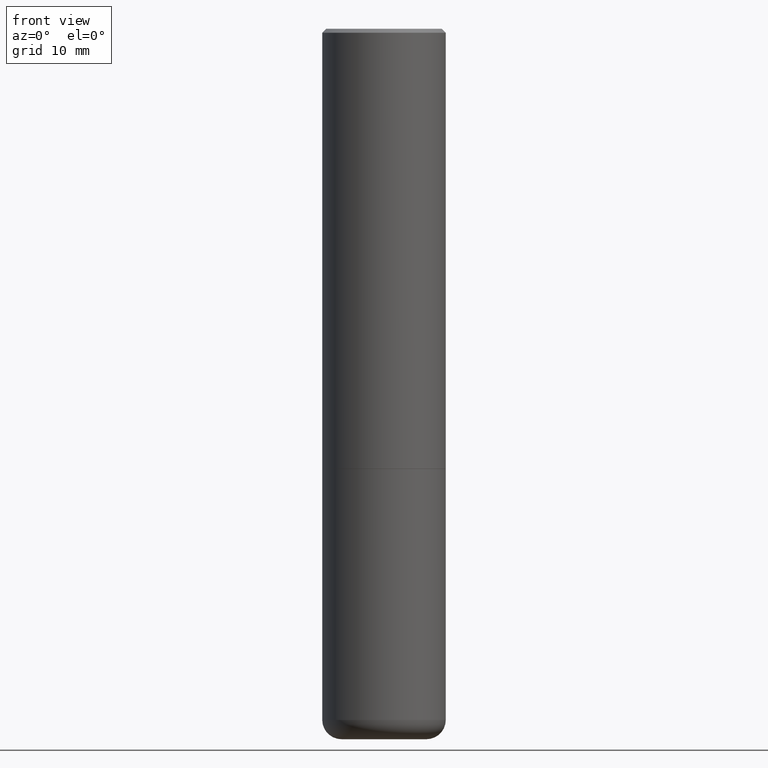
[diagram: clean part render]
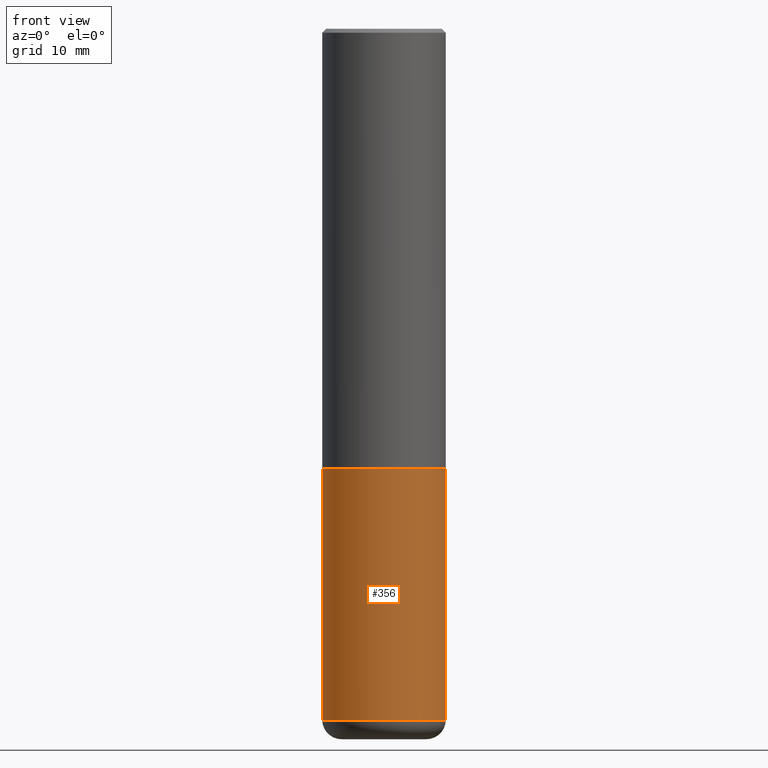
[diagram: same view with one face highlighted and labeled with its STEP entity id]
A machine part, front view. The second image highlights one B-rep face of the part: STEP entity #356.
In plain terms, the highlighted cylindrical surface (partial cylindrical patch) has radius 7.9997 mm, axis along (-0, 0, 1).
Its self-contained STEP definition (entity closure, byte-faithful):
#6 = VERTEX_POINT ( 'NONE', #367 ) ;
#9 = LINE ( 'NONE', #139, #37 ) ;
#37 = VECTOR ( 'NONE', #176, 39.37007874015748143 ) ;
#64 = CARTESIAN_POINT ( 'NONE',  ( 0.000000000000000000, 0.000000000000000000, 0.000000000000000000 ) ) ;
#71 = DIRECTION ( 'NONE',  ( 1.000000000000000000, -6.982962677686266711E-15, 0.000000000000000000 ) ) ;
#76 = ORIENTED_EDGE ( 'NONE', *, *, #197, .T. ) ;
#77 = LINE ( 'NONE', #385, #389 ) ;
#85 = EDGE_CURVE ( 'NONE', #6, #230, #9, .T. ) ;
#106 = VERTEX_POINT ( 'NONE', #394 ) ;
#112 = DIRECTION ( 'NONE',  ( -2.445468806185136597E-29, 3.491481338843145583E-15, 1.000000000000000000 ) ) ;
#114 = AXIS2_PLACEMENT_3D ( 'NONE', #171, #242, #71 ) ;
#116 = EDGE_CURVE ( 'NONE', #106, #230, #213, .T. ) ;
#125 = FACE_OUTER_BOUND ( 'NONE', #243, .T. ) ;
#126 = ORIENTED_EDGE ( 'NONE', *, *, #85, .T. ) ;
#139 = CARTESIAN_POINT ( 'NONE',  ( 0.3149500000000000077, -2.199284095337289871E-15, 1.535751875536930130E-29 ) ) ;
#148 = CARTESIAN_POINT ( 'NONE',  ( 0.3149500000000000077, -1.003416821970130712E-14, -2.243999999999999773 ) ) ;
#170 = ORIENTED_EDGE ( 'NONE', *, *, #411, .F. ) ;
#171 = CARTESIAN_POINT ( 'NONE',  ( 5.487632001079445967E-29, -7.834884124364017250E-15, -2.243999999999999773 ) ) ;
#176 = DIRECTION ( 'NONE',  ( -2.445468806185136877E-29, 3.491481338843145188E-15, 1.000000000000000000 ) ) ;
#183 = CARTESIAN_POINT ( 'NONE',  ( 8.616853885473946211E-29, -1.230258364554770589E-14, -3.523599999999999621 ) ) ;
#186 = CARTESIAN_POINT ( 'NONE',  ( -0.3149499999999999522, -1.006472929927126990E-14, -3.523599999999999621 ) ) ;
#197 = EDGE_CURVE ( 'NONE', #393, #6, #239, .T. ) ;
#213 = CIRCLE ( 'NONE', #114, 0.3149500000000000077 ) ;
#215 = AXIS2_PLACEMENT_3D ( 'NONE', #183, #112, #247 ) ;
#230 = VERTEX_POINT ( 'NONE', #148 ) ;
#234 = ORIENTED_EDGE ( 'NONE', *, *, #116, .F. ) ;
#239 = CIRCLE ( 'NONE', #215, 0.3149500000000000077 ) ;
#242 = DIRECTION ( 'NONE',  ( -2.445468806185136597E-29, 3.491481338843145583E-15, 1.000000000000000000 ) ) ;
#243 = EDGE_LOOP ( 'NONE', ( #170, #76, #126, #234 ) ) ;
#247 = DIRECTION ( 'NONE',  ( 1.000000000000000000, -6.982962677686269866E-15, 0.000000000000000000 ) ) ;
#252 = DIRECTION ( 'NONE',  ( -2.445468806185136597E-29, 3.491481338843145583E-15, 1.000000000000000000 ) ) ;
#356 = ADVANCED_FACE ( 'NONE', ( #125 ), #392, .T. ) ;
#360 = DIRECTION ( 'NONE',  ( 1.000000000000000000, -6.982962677686266711E-15, 4.876176775795936353E-29 ) ) ;
#367 = CARTESIAN_POINT ( 'NONE',  ( 0.3149499999999999522, -1.450186774088499734E-14, -3.523599999999999621 ) ) ;
#380 = AXIS2_PLACEMENT_3D ( 'NONE', #64, #252, #360 ) ;
#385 = CARTESIAN_POINT ( 'NONE',  ( -0.3149500000000000077, 2.237854346276435590E-15, -1.549218606675782676E-29 ) ) ;
#389 = VECTOR ( 'NONE', #398, 39.37007874015748143 ) ;
#392 = CYLINDRICAL_SURFACE ( 'NONE', #380, 0.3149500000000000077 ) ;
#393 = VERTEX_POINT ( 'NONE', #186 ) ;
#394 = CARTESIAN_POINT ( 'NONE',  ( -0.3149500000000000077, -7.830879538679425584E-15, -2.243999999999999773 ) ) ;
#398 = DIRECTION ( 'NONE',  ( -2.445468806185136877E-29, 3.491481338843145188E-15, 1.000000000000000000 ) ) ;
#411 = EDGE_CURVE ( 'NONE', #393, #106, #77, .T. ) ;